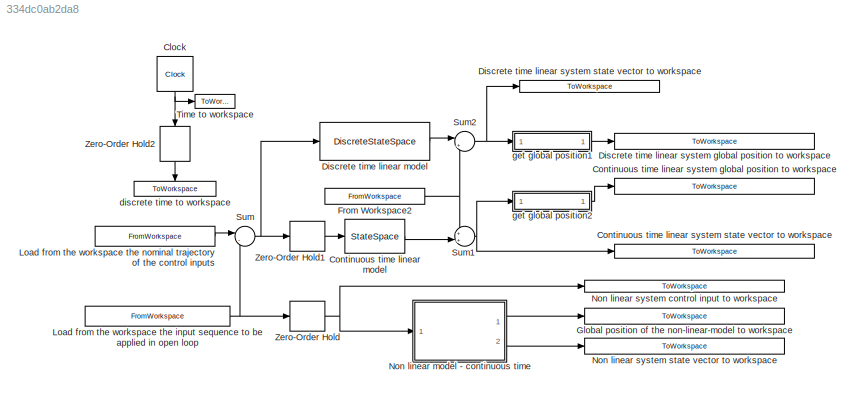
MODEL slx_334dc0ab2da8
KIND model
CONFIG AbsTol = auto
CONFIG EnableMultiTasking = on
CONFIG FixedStep = auto
CONFIG MaxStep = 0.01
CONFIG MinStep = auto
CONFIG RelTol = 1e-3
CONFIG SampleTimeConstraint = Unconstrained
CONFIG Solver = ode45
CONFIG SolverName = ode45
CONFIG StartTime = 0.0
CONFIG StopTime = simulation_time
BLOCK [ToWorkspace]  Discrete time linear system state vector to workspace
  MaxDataPoints = inf
  Ports = [1]
  SampleTime = -1
  VariableName = discrete_linear_model_y
BLOCK [Clock] Clock
  DisplayTime = on
BLOCK [StateSpace] Continuous time linear model
  A = A
  B = B
  C = C
  D = D
  InitialCondition = x0_tild
  Ports = [1, 1]
BLOCK [ToWorkspace] Continuous time linear system global position to workspace
  MaxDataPoints = inf
  Ports = [1]
  SampleTime = -1
  VariableName = continuous_linear_model_global_position
BLOCK [ToWorkspace] Continuous time linear system state vector to workspace
  MaxDataPoints = inf
  Ports = [1]
  SampleTime = -1
  VariableName = continuous_linear_model_y
BLOCK [DiscreteStateSpace] Discrete time linear model
  A = Phi
  B = Gam
  C = C
  D = D
  InitialCondition = x0_tild
  SampleTime = sampling_time
BLOCK [ToWorkspace] Discrete time linear system global position to workspace
  MaxDataPoints = inf
  Ports = [1]
  SampleTime = -1
  VariableName = discrete_linear_model_global_position
BLOCK [FromWorkspace] From Workspace2
  Interpolate = off
  OutputAfterFinalValue = Holding final value
  SampleTime = sampling_time
  VariableName = nominal_trajectory_x
  ZeroCross = on
BLOCK [ToWorkspace] Global position of the non-linear-model to workspace
  MaxDataPoints = inf
  Ports = [1]
  SampleTime = -1
  VariableName = continuous_non_linear_model_global_position
BLOCK [FromWorkspace] Load from the workspace the input sequence to be applied in open loop
  SampleTime = sampling_time
  VariableName = input_sequence
  ZeroCross = on
BLOCK [FromWorkspace] Load from the workspace the nominal trajectory of the control inputs
  Interpolate = off
  OutputAfterFinalValue = Holding final value
  SampleTime = sampling_time
  VariableName = nominal_trajectory_u
  ZeroCross = on
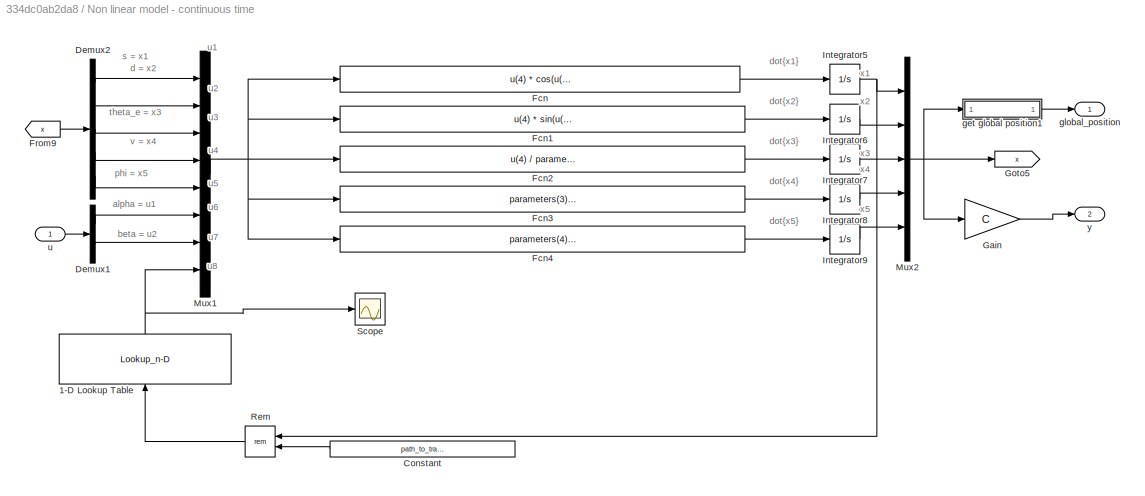
BLOCK [SubSystem] Non linear model - continuous time
  Ports = [1, 2]
  RequestExecContextInheritance = off
BLOCK [Lookup_n-D] Non linear model - continuous time/1-D Lookup Table
  BreakpointsForDimension1 = path_to_track.s_coordinate
  InternalRulePriority = Speed
  NumberOfTableDimensions = 1
  Ports = [1, 1]
  RndMeth = Simplest
  Table = path_to_track.curvature
BLOCK [Constant] Non linear model - continuous time/Constant
  Value = path_to_track.s_coordinate(end)
BLOCK [Demux] Non linear model - continuous time/Demux1
  DisplayOption = bar
  Outputs = 2
  Ports = [1, 2]
BLOCK [Demux] Non linear model - continuous time/Demux2
  DisplayOption = bar
  Outputs = 5
  Ports = [1, 5]
BLOCK [Fcn] Non linear model - continuous time/Fcn
  Expr = u(4) * cos(u(3)) / (1 - u(8)*u(2) )
BLOCK [Fcn] Non linear model - continuous time/Fcn1
  Expr = u(4) * sin(u(3))
BLOCK [Fcn] Non linear model - continuous time/Fcn2
  Expr = u(4) / parameters(2) * tan(u(5)/16) - u(8) * u(4) * cos(u(3)) / (1 - u(8)*u(2) )
BLOCK [Fcn] Non linear model - continuous time/Fcn3
  Expr = parameters(3) * (u(6) - u(4))
BLOCK [Fcn] Non linear model - continuous time/Fcn4
  Expr = parameters(4) * (u(7) - u(5))
BLOCK [From] Non linear model - continuous time/From9
  GotoTag = x
BLOCK [Gain] Non linear model - continuous time/Gain
  Gain = C
  Multiplication = Matrix(K*u)
  OutDataTypeStr = Inherit: Inherit via internal rule
  ParamDataTypeStr = Inherit: Inherit via internal rule
  SaturateOnIntegerOverflow = off
BLOCK [Goto] Non linear model - continuous time/Goto5
  GotoTag = x
BLOCK [Integrator] Non linear model - continuous time/Integrator5
  InitialCondition = x0(1)
  Ports = [1, 1]
BLOCK [Integrator] Non linear model - continuous time/Integrator6
  InitialCondition = x0(2)
  Ports = [1, 1]
BLOCK [Integrator] Non linear model - continuous time/Integrator7
  InitialCondition = x0(3)
  Ports = [1, 1]
BLOCK [Integrator] Non linear model - continuous time/Integrator8
  InitialCondition = x0(4)
  Ports = [1, 1]
BLOCK [Integrator] Non linear model - continuous time/Integrator9
  InitialCondition = x0(5)
  Ports = [1, 1]
BLOCK [Mux] Non linear model - continuous time/Mux1
  DisplayOption = bar
  Inputs = 8
  Ports = [8, 1]
BLOCK [Mux] Non linear model - continuous time/Mux2
  DisplayOption = bar
  Inputs = 5
  Ports = [5, 1]
BLOCK [Math] Non linear model - continuous time/Rem
  Operator = rem
  Ports = [2, 1]
BLOCK [Scope] Non linear model - continuous time/Scope
  Floating = off
  NumInputPorts = 1
  Ports = [1]
  ScopeSpecificationString = Simulink.scopes.TimeScopeBlockCfg('CurrentConfiguration', extmgr.ConfigurationSet(extmgr.Configuration('Core','General UI',true),extmgr.Configuration('Core','Source UI',true),extmgr.Configuration('Sources','WiredSimulink',true,'DataLoggingVariableName','ScopeData2'),extmgr.Configuration('Visuals','Time Domain',true,'SerializedDisplays',{struct('MinYLimReal','0.00000000009','MaxYLimReal','0.0000000...<+1452ch>
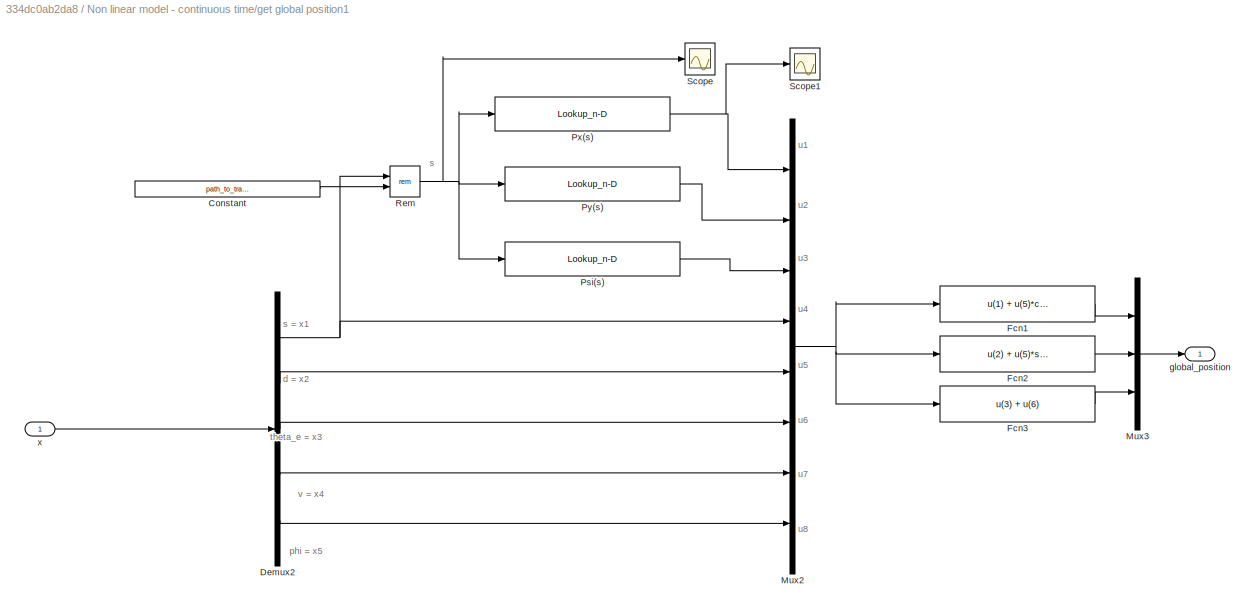
BLOCK [SubSystem] Non linear model - continuous time/get global position1
  Ports = [1, 1]
  RequestExecContextInheritance = off
BLOCK [Constant] Non linear model - continuous time/get global position1/Constant
  Value = path_to_track.s_coordinate(end)
BLOCK [Demux] Non linear model - continuous time/get global position1/Demux2
  DisplayOption = bar
  Outputs = 5
  Ports = [1, 5]
BLOCK [Fcn] Non linear model - continuous time/get global position1/Fcn1
  Expr = u(1) + u(5)*cos(u(3) + pi/2)
BLOCK [Fcn] Non linear model - continuous time/get global position1/Fcn2
  Expr = u(2) + u(5)*sin(u(3) + pi/2)
BLOCK [Fcn] Non linear model - continuous time/get global position1/Fcn3
  Expr = u(3) + u(6)
BLOCK [Mux] Non linear model - continuous time/get global position1/Mux2
  DisplayOption = bar
  Inputs = 8
  Ports = [8, 1]
BLOCK [Mux] Non linear model - continuous time/get global position1/Mux3
  DisplayOption = bar
  Inputs = 3
  Ports = [3, 1]
BLOCK [Lookup_n-D] Non linear model - continuous time/get global position1/Psi(s)
  BreakpointsForDimension1 = path_to_track.s_coordinate
  InternalRulePriority = Speed
  NumberOfTableDimensions = 1
  Ports = [1, 1]
  RndMeth = Simplest
  Table = path_to_track.orientation
BLOCK [Lookup_n-D] Non linear model - continuous time/get global position1/Px(s)
  BreakpointsForDimension1 = path_to_track.s_coordinate
  InternalRulePriority = Speed
  NumberOfTableDimensions = 1
  Ports = [1, 1]
  RndMeth = Simplest
  Table = path_to_track.coordinates(:,1)
BLOCK [Lookup_n-D] Non linear model - continuous time/get global position1/Py(s)
  BreakpointsForDimension1 = path_to_track.s_coordinate
  InternalRulePriority = Speed
  NumberOfTableDimensions = 1
  Ports = [1, 1]
  RndMeth = Simplest
  Table = path_to_track.coordinates(:,2)
BLOCK [Math] Non linear model - continuous time/get global position1/Rem
  Operator = rem
  Ports = [2, 1]
BLOCK [Scope] Non linear model - continuous time/get global position1/Scope
  Floating = off
  NumInputPorts = 1
  Ports = [1]
  ScopeSpecificationString = Simulink.scopes.TimeScopeBlockCfg('CurrentConfiguration', extmgr.ConfigurationSet(extmgr.Configuration('Core','General UI',true),extmgr.Configuration('Core','Source UI',true),extmgr.Configuration('Sources','WiredSimulink',true),extmgr.Configuration('Visuals','Time Domain',true,'SerializedDisplays',{struct('MinYLimReal','-23.93468','MaxYLimReal','214.65941','YLabelReal','','MinYLimMag','0.00000','M...<+1360ch>  <repeated x3 — deduplicated; at blocks: Scope>
BLOCK [Scope] Non linear model - continuous time/get global position1/Scope1
  Floating = off
  NumInputPorts = 1
  Ports = [1]
  ScopeSpecificationString = Simulink.scopes.TimeScopeBlockCfg('CurrentConfiguration', extmgr.ConfigurationSet(extmgr.Configuration('Core','General UI',true),extmgr.Configuration('Core','Source UI',true),extmgr.Configuration('Sources','WiredSimulink',true,'DataLoggingVariableName','ScopeData1'),extmgr.Configuration('Visuals','Time Domain',true,'SerializedDisplays',{struct('MinYLimReal','9999999998.22974','MaxYLimReal','999999...<+1459ch>  <repeated x3 — deduplicated; at blocks: Scope1>
BLOCK [Outport] Non linear model - continuous time/get global position1/global_position
  IconDisplay = Port number
BLOCK [Inport] Non linear model - continuous time/get global position1/x
  IconDisplay = Port number
BLOCK [Outport] Non linear model - continuous time/global_position
  IconDisplay = Port number
BLOCK [Inport] Non linear model - continuous time/u
  IconDisplay = Port number
BLOCK [Outport] Non linear model - continuous time/y
  IconDisplay = Port number
  Port = 2
BLOCK [ToWorkspace] Non linear system control input to workspace
  MaxDataPoints = inf
  Ports = [1]
  SampleTime = -1
  VariableName = open_loop_u
BLOCK [ToWorkspace] Non linear system state vector to workspace
  MaxDataPoints = inf
  Ports = [1]
  SampleTime = -1
  VariableName = continuous_non_linear_model_y
BLOCK [Sum] Sum
  IconShape = round
  InputSameDT = off
  Inputs = |-+
  OutDataTypeStr = Inherit: Inherit via internal rule
  Ports = [2, 1]
  SaturateOnIntegerOverflow = off
BLOCK [Sum] Sum1
  IconShape = round
  InputSameDT = off
  Inputs = ++|
  OutDataTypeStr = Inherit: Inherit via internal rule
  Ports = [2, 1]
  SaturateOnIntegerOverflow = off
BLOCK [Sum] Sum2
  IconShape = round
  InputSameDT = off
  Inputs = |++
  OutDataTypeStr = Inherit: Inherit via internal rule
  Ports = [2, 1]
  SaturateOnIntegerOverflow = off
BLOCK [ToWorkspace] Time to workspace
  MaxDataPoints = inf
  Ports = [1]
  SampleTime = -1
  VariableName = time
BLOCK [ZeroOrderHold] Zero-Order Hold
  SampleTime = sampling_time
BLOCK [ZeroOrderHold] Zero-Order Hold1
  SampleTime = sampling_time
BLOCK [ZeroOrderHold] Zero-Order Hold2
  SampleTime = sampling_time
BLOCK [ToWorkspace] discrete time to workspace
  MaxDataPoints = inf
  Ports = [1]
  SampleTime = -1
  VariableName = discrete_time
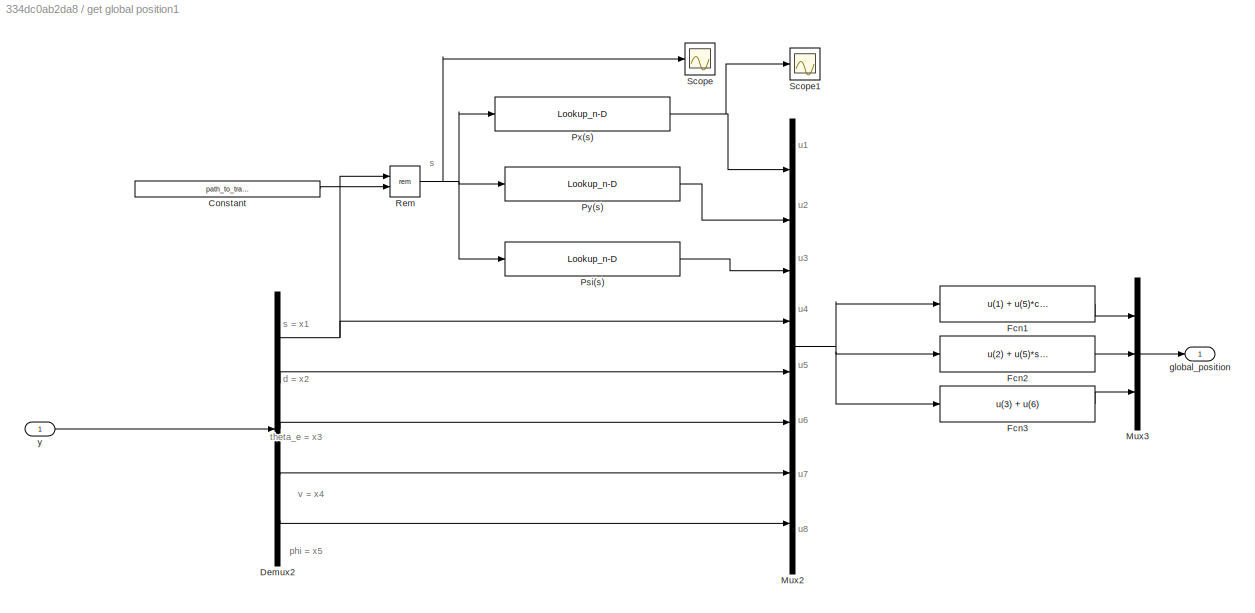
BLOCK [SubSystem] get global position1
  Ports = [1, 1]
  RequestExecContextInheritance = off
BLOCK [Constant] get global position1/Constant
  Value = path_to_track.s_coordinate(end)
BLOCK [Demux] get global position1/Demux2
  DisplayOption = bar
  Outputs = 5
  Ports = [1, 5]
BLOCK [Fcn] get global position1/Fcn1
  Expr = u(1) + u(5)*cos(u(3) + pi/2)
BLOCK [Fcn] get global position1/Fcn2
  Expr = u(2) + u(5)*sin(u(3) + pi/2)
BLOCK [Fcn] get global position1/Fcn3
  Expr = u(3) + u(6)
BLOCK [Mux] get global position1/Mux2
  DisplayOption = bar
  Inputs = 8
  Ports = [8, 1]
BLOCK [Mux] get global position1/Mux3
  DisplayOption = bar
  Inputs = 3
  Ports = [3, 1]
BLOCK [Lookup_n-D] get global position1/Psi(s)
  BreakpointsForDimension1 = path_to_track.s_coordinate
  InternalRulePriority = Speed
  NumberOfTableDimensions = 1
  Ports = [1, 1]
  RndMeth = Simplest
  Table = path_to_track.orientation
BLOCK [Lookup_n-D] get global position1/Px(s)
  BreakpointsForDimension1 = path_to_track.s_coordinate
  InternalRulePriority = Speed
  NumberOfTableDimensions = 1
  Ports = [1, 1]
  RndMeth = Simplest
  Table = path_to_track.coordinates(:,1)
BLOCK [Lookup_n-D] get global position1/Py(s)
  BreakpointsForDimension1 = path_to_track.s_coordinate
  InternalRulePriority = Speed
  NumberOfTableDimensions = 1
  Ports = [1, 1]
  RndMeth = Simplest
  Table = path_to_track.coordinates(:,2)
BLOCK [Math] get global position1/Rem
  Operator = rem
  Ports = [2, 1]
BLOCK [Scope] get global position1/Scope
  Floating = off
  NumInputPorts = 1
  Ports = [1]
BLOCK [Scope] get global position1/Scope1
  Floating = off
  NumInputPorts = 1
  Ports = [1]
BLOCK [Outport] get global position1/global_position
  IconDisplay = Port number
BLOCK [Inport] get global position1/y
  IconDisplay = Port number
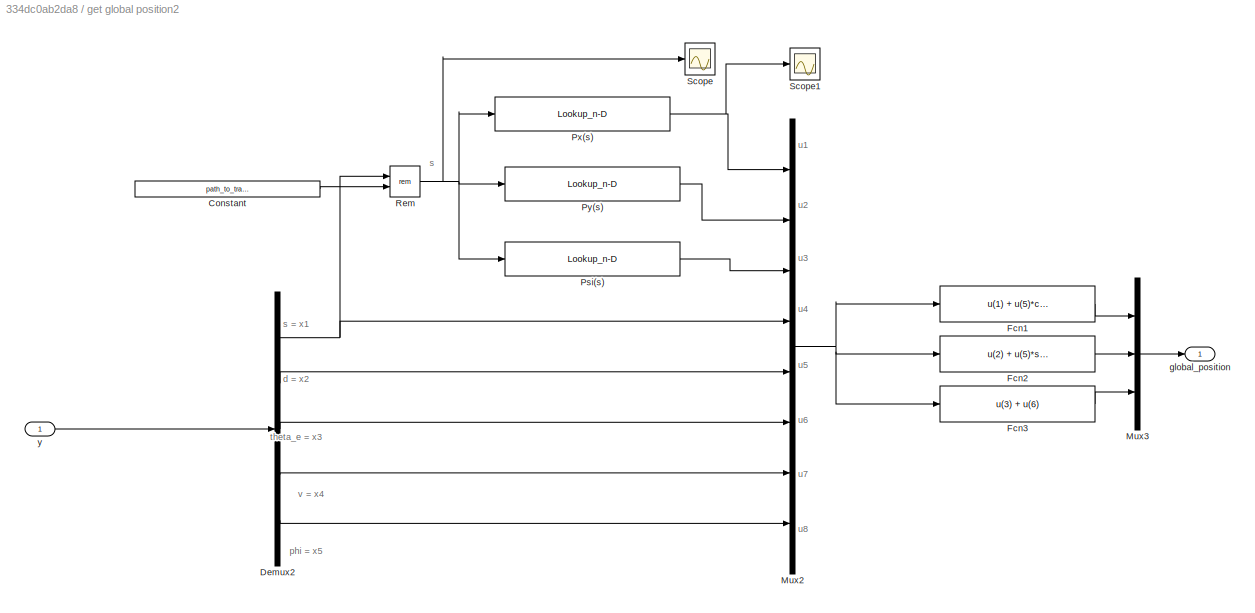
BLOCK [SubSystem] get global position2
  Ports = [1, 1]
  RequestExecContextInheritance = off
BLOCK [Constant] get global position2/Constant
  Value = path_to_track.s_coordinate(end)
BLOCK [Demux] get global position2/Demux2
  DisplayOption = bar
  Outputs = 5
  Ports = [1, 5]
BLOCK [Fcn] get global position2/Fcn1
  Expr = u(1) + u(5)*cos(u(3) + pi/2)
BLOCK [Fcn] get global position2/Fcn2
  Expr = u(2) + u(5)*sin(u(3) + pi/2)
BLOCK [Fcn] get global position2/Fcn3
  Expr = u(3) + u(6)
BLOCK [Mux] get global position2/Mux2
  DisplayOption = bar
  Inputs = 8
  Ports = [8, 1]
BLOCK [Mux] get global position2/Mux3
  DisplayOption = bar
  Inputs = 3
  Ports = [3, 1]
BLOCK [Lookup_n-D] get global position2/Psi(s)
  BreakpointsForDimension1 = path_to_track.s_coordinate
  InternalRulePriority = Speed
  NumberOfTableDimensions = 1
  Ports = [1, 1]
  RndMeth = Simplest
  Table = path_to_track.orientation
BLOCK [Lookup_n-D] get global position2/Px(s)
  BreakpointsForDimension1 = path_to_track.s_coordinate
  InternalRulePriority = Speed
  NumberOfTableDimensions = 1
  Ports = [1, 1]
  RndMeth = Simplest
  Table = path_to_track.coordinates(:,1)
BLOCK [Lookup_n-D] get global position2/Py(s)
  BreakpointsForDimension1 = path_to_track.s_coordinate
  InternalRulePriority = Speed
  NumberOfTableDimensions = 1
  Ports = [1, 1]
  RndMeth = Simplest
  Table = path_to_track.coordinates(:,2)
BLOCK [Math] get global position2/Rem
  Operator = rem
  Ports = [2, 1]
BLOCK [Scope] get global position2/Scope
  Floating = off
  NumInputPorts = 1
  Ports = [1]
BLOCK [Scope] get global position2/Scope1
  Floating = off
  NumInputPorts = 1
  Ports = [1]
BLOCK [Outport] get global position2/global_position
  IconDisplay = Port number
BLOCK [Inport] get global position2/y
  IconDisplay = Port number
ANNOTATION Non linear model - continuous time: alpha = u1
ANNOTATION Non linear model - continuous time: beta = u2
ANNOTATION Non linear model - continuous time: d = x2
ANNOTATION Non linear model - continuous time: dot{x1}
ANNOTATION Non linear model - continuous time: dot{x2}
ANNOTATION Non linear model - continuous time: dot{x3}
ANNOTATION Non linear model - continuous time: dot{x4}
ANNOTATION Non linear model - continuous time: dot{x5}
ANNOTATION Non linear model - continuous time: phi = x5
ANNOTATION Non linear model - continuous time: s = x1
ANNOTATION Non linear model - continuous time: theta_e = x3
ANNOTATION Non linear model - continuous time: u1
ANNOTATION Non linear model - continuous time: u2
ANNOTATION Non linear model - continuous time: u3
ANNOTATION Non linear model - continuous time: u4
ANNOTATION Non linear model - continuous time: u5
ANNOTATION Non linear model - continuous time: u6
ANNOTATION Non linear model - continuous time: u7
ANNOTATION Non linear model - continuous time: u8
ANNOTATION Non linear model - continuous time: v = x4
ANNOTATION Non linear model - continuous time: x1
ANNOTATION Non linear model - continuous time: x2
ANNOTATION Non linear model - continuous time: x3
ANNOTATION Non linear model - continuous time: x4
ANNOTATION Non linear model - continuous time: x5
ANNOTATION Non linear model - continuous time/get global position1: d = x2
ANNOTATION Non linear model - continuous time/get global position1: phi = x5
ANNOTATION Non linear model - continuous time/get global position1: s
ANNOTATION Non linear model - continuous time/get global position1: s = x1
ANNOTATION Non linear model - continuous time/get global position1: theta_e = x3
ANNOTATION Non linear model - continuous time/get global position1: u1
ANNOTATION Non linear model - continuous time/get global position1: u2
ANNOTATION Non linear model - continuous time/get global position1: u3
ANNOTATION Non linear model - continuous time/get global position1: u4
ANNOTATION Non linear model - continuous time/get global position1: u5
ANNOTATION Non linear model - continuous time/get global position1: u6
ANNOTATION Non linear model - continuous time/get global position1: u7
ANNOTATION Non linear model - continuous time/get global position1: u8
ANNOTATION Non linear model - continuous time/get global position1: v = x4
ANNOTATION get global position1: d = x2
ANNOTATION get global position1: phi = x5
ANNOTATION get global position1: s
ANNOTATION get global position1: s = x1
ANNOTATION get global position1: theta_e = x3
ANNOTATION get global position1: u1
ANNOTATION get global position1: u2
ANNOTATION get global position1: u3
ANNOTATION get global position1: u4
ANNOTATION get global position1: u5
ANNOTATION get global position1: u6
ANNOTATION get global position1: u7
ANNOTATION get global position1: u8
ANNOTATION get global position1: v = x4
ANNOTATION get global position2: d = x2
ANNOTATION get global position2: phi = x5
ANNOTATION get global position2: s
ANNOTATION get global position2: s = x1
ANNOTATION get global position2: theta_e = x3
ANNOTATION get global position2: u1
ANNOTATION get global position2: u2
ANNOTATION get global position2: u3
ANNOTATION get global position2: u4
ANNOTATION get global position2: u5
ANNOTATION get global position2: u6
ANNOTATION get global position2: u7
ANNOTATION get global position2: u8
ANNOTATION get global position2: v = x4
NET Clock:1 -> Time to workspace:1, Zero-Order Hold2:1
LINE Continuous time linear model:1 -> Sum1:2
LINE Discrete time linear model:1 -> Sum2:1
NET From Workspace2:1 -> Sum1:1, Sum2:2
NET Load from the workspace the input sequence to be applied in open loop:1 -> Sum:2, Zero-Order Hold:1
LINE Load from the workspace the nominal trajectory of the control inputs:1 -> Sum:1
NET Non linear model - continuous time/1-D Lookup Table:1 -> Non linear model - continuous time/Mux1:8, Non linear model - continuous time/Scope:1
LINE Non linear model - continuous time/Constant:1 -> Non linear model - continuous time/Rem:2
LINE Non linear model - continuous time/Demux1:1 -> Non linear model - continuous time/Mux1:6
LINE Non linear model - continuous time/Demux1:2 -> Non linear model - continuous time/Mux1:7
LINE Non linear model - continuous time/Demux2:1 -> Non linear model - continuous time/Mux1:1
LINE Non linear model - continuous time/Demux2:2 -> Non linear model - continuous time/Mux1:2
LINE Non linear model - continuous time/Demux2:3 -> Non linear model - continuous time/Mux1:3
LINE Non linear model - continuous time/Demux2:4 -> Non linear model - continuous time/Mux1:4
LINE Non linear model - continuous time/Demux2:5 -> Non linear model - continuous time/Mux1:5
LINE Non linear model - continuous time/Fcn1:1 -> Non linear model - continuous time/Integrator6:1
LINE Non linear model - continuous time/Fcn2:1 -> Non linear model - continuous time/Integrator7:1
LINE Non linear model - continuous time/Fcn3:1 -> Non linear model - continuous time/Integrator8:1
LINE Non linear model - continuous time/Fcn4:1 -> Non linear model - continuous time/Integrator9:1
LINE Non linear model - continuous time/Fcn:1 -> Non linear model - continuous time/Integrator5:1
LINE Non linear model - continuous time/From9:1 -> Non linear model - continuous time/Demux2:1
LINE Non linear model - continuous time/Gain:1 -> Non linear model - continuous time/y:1
NET Non linear model - continuous time/Integrator5:1 -> Non linear model - continuous time/Mux2:1, Non linear model - continuous time/Rem:1
LINE Non linear model - continuous time/Integrator6:1 -> Non linear model - continuous time/Mux2:2
LINE Non linear model - continuous time/Integrator7:1 -> Non linear model - continuous time/Mux2:3
LINE Non linear model - continuous time/Integrator8:1 -> Non linear model - continuous time/Mux2:4
LINE Non linear model - continuous time/Integrator9:1 -> Non linear model - continuous time/Mux2:5
NET Non linear model - continuous time/Mux1:1 -> Non linear model - continuous time/Fcn1:1, Non linear model - continuous time/Fcn2:1, Non linear model - continuous time/Fcn3:1, Non linear model - continuous time/Fcn4:1, Non linear model - continuous time/Fcn:1
NET Non linear model - continuous time/Mux2:1 -> Non linear model - continuous time/Gain:1, Non linear model - continuous time/Goto5:1, Non linear model - continuous time/get global position1:1
LINE Non linear model - continuous time/Rem:1 -> Non linear model - continuous time/1-D Lookup Table:1
LINE Non linear model - continuous time/get global position1/Constant:1 -> Non linear model - continuous time/get global position1/Rem:2
NET Non linear model - continuous time/get global position1/Demux2:1 -> Non linear model - continuous time/get global position1/Mux2:4, Non linear model - continuous time/get global position1/Rem:1
LINE Non linear model - continuous time/get global position1/Demux2:2 -> Non linear model - continuous time/get global position1/Mux2:5
LINE Non linear model - continuous time/get global position1/Demux2:3 -> Non linear model - continuous time/get global position1/Mux2:6
LINE Non linear model - continuous time/get global position1/Demux2:4 -> Non linear model - continuous time/get global position1/Mux2:7
LINE Non linear model - continuous time/get global position1/Demux2:5 -> Non linear model - continuous time/get global position1/Mux2:8
LINE Non linear model - continuous time/get global position1/Fcn1:1 -> Non linear model - continuous time/get global position1/Mux3:1
LINE Non linear model - continuous time/get global position1/Fcn2:1 -> Non linear model - continuous time/get global position1/Mux3:2
LINE Non linear model - continuous time/get global position1/Fcn3:1 -> Non linear model - continuous time/get global position1/Mux3:3
NET Non linear model - continuous time/get global position1/Mux2:1 -> Non linear model - continuous time/get global position1/Fcn1:1, Non linear model - continuous time/get global position1/Fcn2:1, Non linear model - continuous time/get global position1/Fcn3:1
LINE Non linear model - continuous time/get global position1/Mux3:1 -> Non linear model - continuous time/get global position1/global_position:1
LINE Non linear model - continuous time/get global position1/Psi(s):1 -> Non linear model - continuous time/get global position1/Mux2:3
NET Non linear model - continuous time/get global position1/Px(s):1 -> Non linear model - continuous time/get global position1/Mux2:1, Non linear model - continuous time/get global position1/Scope1:1
LINE Non linear model - continuous time/get global position1/Py(s):1 -> Non linear model - continuous time/get global position1/Mux2:2
NET Non linear model - continuous time/get global position1/Rem:1 -> Non linear model - continuous time/get global position1/Psi(s):1, Non linear model - continuous time/get global position1/Px(s):1, Non linear model - continuous time/get global position1/Py(s):1, Non linear model - continuous time/get global position1/Scope:1
LINE Non linear model - continuous time/get global position1/x:1 -> Non linear model - continuous time/get global position1/Demux2:1
LINE Non linear model - continuous time/get global position1:1 -> Non linear model - continuous time/global_position:1
LINE Non linear model - continuous time/u:1 -> Non linear model - continuous time/Demux1:1
LINE Non linear model - continuous time:1 -> Global position of the non-linear-model to workspace:1
LINE Non linear model - continuous time:2 -> Non linear system state vector to workspace:1
NET Sum1:1 -> Continuous time linear system state vector to workspace:1, get global position2:1
NET Sum2:1 ->  Discrete time linear system state vector to workspace:1, get global position1:1
NET Sum:1 -> Discrete time linear model:1, Zero-Order Hold1:1
LINE Zero-Order Hold1:1 -> Continuous time linear model:1
LINE Zero-Order Hold2:1 -> discrete time to workspace:1
NET Zero-Order Hold:1 -> Non linear model - continuous time:1, Non linear system control input to workspace:1
LINE get global position1/Constant:1 -> get global position1/Rem:2
NET get global position1/Demux2:1 -> get global position1/Mux2:4, get global position1/Rem:1
LINE get global position1/Demux2:2 -> get global position1/Mux2:5
LINE get global position1/Demux2:3 -> get global position1/Mux2:6
LINE get global position1/Demux2:4 -> get global position1/Mux2:7
LINE get global position1/Demux2:5 -> get global position1/Mux2:8
LINE get global position1/Fcn1:1 -> get global position1/Mux3:1
LINE get global position1/Fcn2:1 -> get global position1/Mux3:2
LINE get global position1/Fcn3:1 -> get global position1/Mux3:3
NET get global position1/Mux2:1 -> get global position1/Fcn1:1, get global position1/Fcn2:1, get global position1/Fcn3:1
LINE get global position1/Mux3:1 -> get global position1/global_position:1
LINE get global position1/Psi(s):1 -> get global position1/Mux2:3
NET get global position1/Px(s):1 -> get global position1/Mux2:1, get global position1/Scope1:1
LINE get global position1/Py(s):1 -> get global position1/Mux2:2
NET get global position1/Rem:1 -> get global position1/Psi(s):1, get global position1/Px(s):1, get global position1/Py(s):1, get global position1/Scope:1
LINE get global position1/y:1 -> get global position1/Demux2:1
LINE get global position1:1 -> Discrete time linear system global position to workspace:1
LINE get global position2/Constant:1 -> get global position2/Rem:2
NET get global position2/Demux2:1 -> get global position2/Mux2:4, get global position2/Rem:1
LINE get global position2/Demux2:2 -> get global position2/Mux2:5
LINE get global position2/Demux2:3 -> get global position2/Mux2:6
LINE get global position2/Demux2:4 -> get global position2/Mux2:7
LINE get global position2/Demux2:5 -> get global position2/Mux2:8
LINE get global position2/Fcn1:1 -> get global position2/Mux3:1
LINE get global position2/Fcn2:1 -> get global position2/Mux3:2
LINE get global position2/Fcn3:1 -> get global position2/Mux3:3
NET get global position2/Mux2:1 -> get global position2/Fcn1:1, get global position2/Fcn2:1, get global position2/Fcn3:1
LINE get global position2/Mux3:1 -> get global position2/global_position:1
LINE get global position2/Psi(s):1 -> get global position2/Mux2:3
NET get global position2/Px(s):1 -> get global position2/Mux2:1, get global position2/Scope1:1
LINE get global position2/Py(s):1 -> get global position2/Mux2:2
NET get global position2/Rem:1 -> get global position2/Psi(s):1, get global position2/Px(s):1, get global position2/Py(s):1, get global position2/Scope:1
LINE get global position2/y:1 -> get global position2/Demux2:1
LINE get global position2:1 -> Continuous time linear system global position to workspace:1
note: NET lines group one-source signal fan-out (src -> all destinations, sorted); 1:1 wires keep LINE
